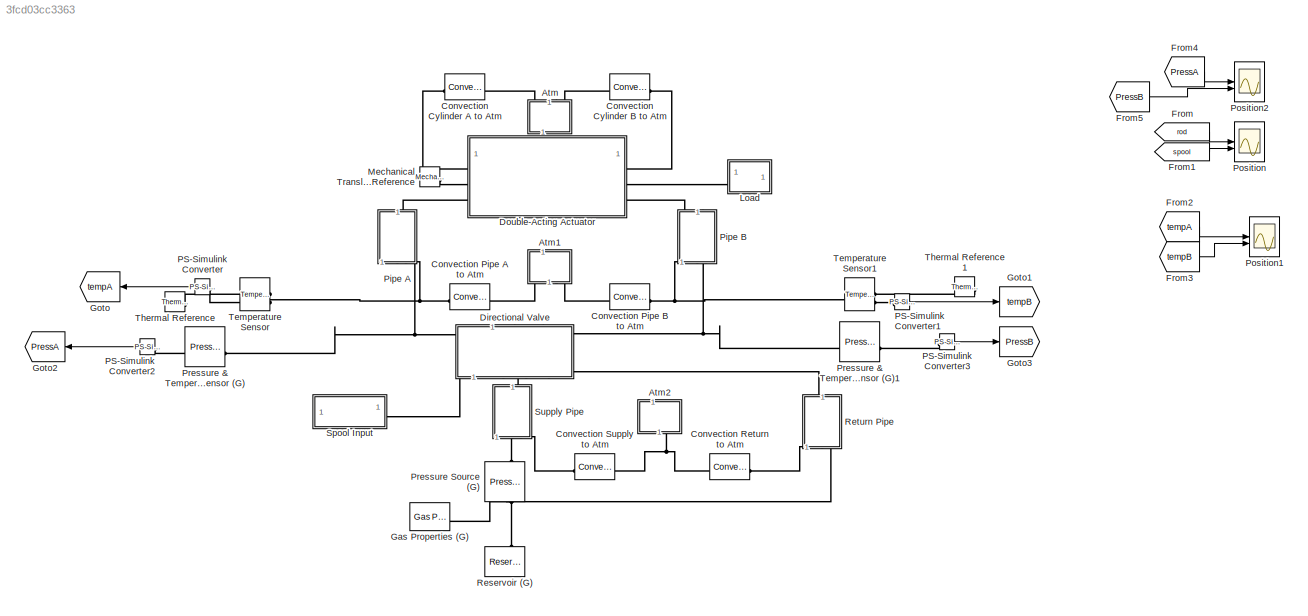
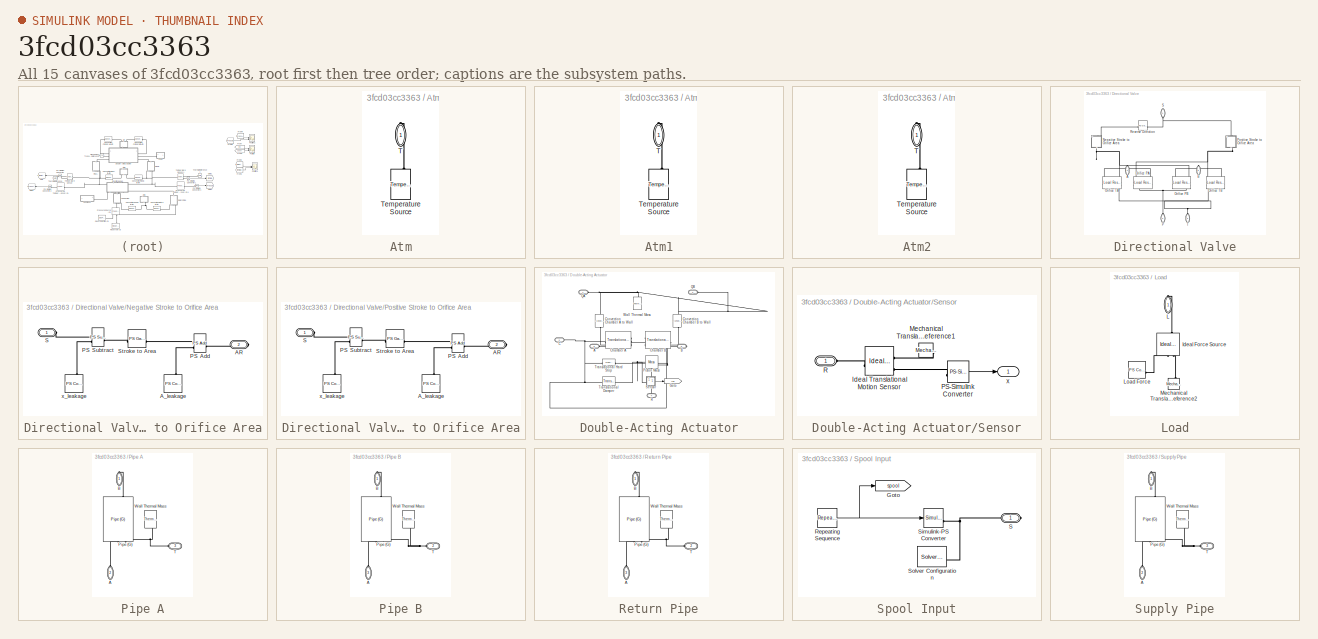
[diagram: thumbnail index - all 15 canvases of the model, root first then tree order]
MODEL slx_3fcd03cc3363
KIND model
CONFIG AbsTol = 1e-3
CONFIG EnableMultiTasking = off
CONFIG FixedStep = auto
CONFIG MaxStep = auto
CONFIG MinStep = auto
CONFIG PreLoadFcn = delta_p = 0.6; % MPa\np_init = 0.101325; % MPa\nT_init = 293.15; % K\nT_atm = 293.15; % K\n\nA_valve_max = 4e-6; % m^2\nA_valve_min = 1e-10; % m^2\n\nA_pipe = 5e-6; % m^2\nL_pipe = 1; % m\n\nA_piston = 0.002; % m^2\nL_piston = 0.2; % m
CONFIG RelTol = 1e-3
CONFIG SampleTimeConstraint = Unconstrained
CONFIG SolverName = VariableStepAuto
CONFIG StartTime = 0.0
CONFIG StopTime = 10.0
BLOCK [SubSystem] Atm
  NameLocation = right
BLOCK [PMIOPort] Atm/T
  NameLocation = right
  Side = Right
BLOCK [Reference] Atm/Temperature Source  REF=fl_lib/Thermal/Thermal Sources/Temperature Source
  NameLocation = right
  SourceBlock = fl_lib/Thermal/Thermal Sources/Temperature Source
  SourceType = Temperature Source
BLOCK [SubSystem] Atm1
  NameLocation = right
BLOCK [PMIOPort] Atm1/T
  NameLocation = right
  Side = Right
BLOCK [Reference] Atm1/Temperature Source  REF=fl_lib/Thermal/Thermal Sources/Temperature Source
  NameLocation = right
  SourceBlock = fl_lib/Thermal/Thermal Sources/Temperature Source
  SourceType = Temperature Source
BLOCK [SubSystem] Atm2
  NameLocation = right
BLOCK [PMIOPort] Atm2/T
  NameLocation = right
  Side = Right
BLOCK [Reference] Atm2/Temperature Source  REF=fl_lib/Thermal/Thermal Sources/Temperature Source
  NameLocation = right
  SourceBlock = fl_lib/Thermal/Thermal Sources/Temperature Source
  SourceType = Temperature Source
BLOCK [Reference] Convection Cylinder A to Atm  REF=fl_lib/Thermal/Thermal Elements/Convective Heat
Transfer
  SourceBlock = fl_lib/Thermal/Thermal Elements/Convective Heat\nTransfer
  SourceType = Convective Heat\nTransfer
BLOCK [Reference] Convection Cylinder B to Atm  REF=fl_lib/Thermal/Thermal Elements/Convective Heat
Transfer
  SourceBlock = fl_lib/Thermal/Thermal Elements/Convective Heat\nTransfer
  SourceType = Convective Heat\nTransfer
BLOCK [Reference] Convection Pipe A to Atm  REF=fl_lib/Thermal/Thermal Elements/Convective Heat
Transfer
  NameLocation = top
  SourceBlock = fl_lib/Thermal/Thermal Elements/Convective Heat\nTransfer
  SourceType = Convective Heat\nTransfer
BLOCK [Reference] Convection Pipe B to Atm  REF=fl_lib/Thermal/Thermal Elements/Convective Heat
Transfer
  NameLocation = top
  SourceBlock = fl_lib/Thermal/Thermal Elements/Convective Heat\nTransfer
  SourceType = Convective Heat\nTransfer
BLOCK [Reference] Convection Return to Atm  REF=fl_lib/Thermal/Thermal Elements/Convective Heat
Transfer
  NameLocation = top
  SourceBlock = fl_lib/Thermal/Thermal Elements/Convective Heat\nTransfer
  SourceType = Convective Heat\nTransfer
BLOCK [Reference] Convection Supply to Atm  REF=fl_lib/Thermal/Thermal Elements/Convective Heat
Transfer
  NameLocation = top
  SourceBlock = fl_lib/Thermal/Thermal Elements/Convective Heat\nTransfer
  SourceType = Convective Heat\nTransfer
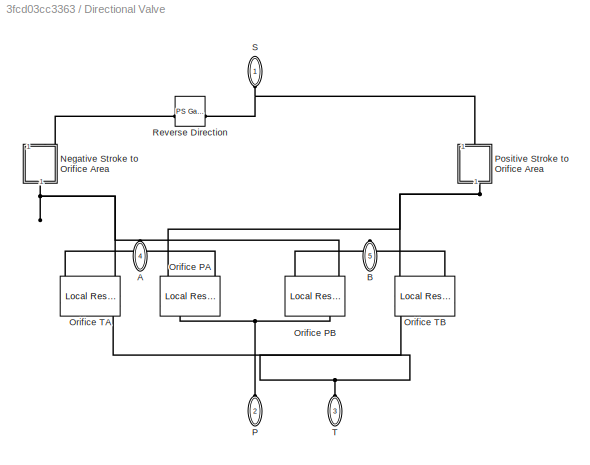
BLOCK [SubSystem] Directional Valve
  NameLocation = right
  Tag = PublishSubsystem
BLOCK [PMIOPort] Directional Valve/A
  NameLocation = right
  Port = 4
  Side = Right
BLOCK [PMIOPort] Directional Valve/B
  NameLocation = right
  Port = 5
  Side = Right
BLOCK [SubSystem] Directional Valve/Negative Stroke to Orifice Area
  NameLocation = right
BLOCK [PMIOPort] Directional Valve/Negative Stroke to Orifice Area/AR
  Port = 2
  Side = Right
BLOCK [Reference] Directional Valve/Negative Stroke to Orifice Area/A_leakage  REF=fl_lib/Physical Signals/Sources/PS Constant
  NameLocation = right
  SourceBlock = fl_lib/Physical Signals/Sources/PS Constant
  SourceType = PS Constant
BLOCK [Reference] Directional Valve/Negative Stroke to Orifice Area/PS Add  REF=fl_lib/Physical Signals/Functions/PS Add
  SourceBlock = fl_lib/Physical Signals/Functions/PS Add
  SourceType = PS Add
BLOCK [Reference] Directional Valve/Negative Stroke to Orifice Area/PS Subtract  REF=fl_lib/Physical Signals/Functions/PS Subtract
  SourceBlock = fl_lib/Physical Signals/Functions/PS Subtract
  SourceType = PS Subtract
BLOCK [PMIOPort] Directional Valve/Negative Stroke to Orifice Area/S
  Side = Left
BLOCK [Reference] Directional Valve/Negative Stroke to Orifice Area/Stroke to Area  REF=fl_lib/Physical Signals/Functions/PS Gain
  SourceBlock = fl_lib/Physical Signals/Functions/PS Gain
  SourceType = PS Gain
BLOCK [Reference] Directional Valve/Negative Stroke to Orifice Area/x_leakage  REF=fl_lib/Physical Signals/Sources/PS Constant
  NameLocation = right
  SourceBlock = fl_lib/Physical Signals/Sources/PS Constant
  SourceType = PS Constant
BLOCK [Reference] Directional Valve/Orifice PA  REF=fl_lib/Gas/Elements/Local Restriction
(G)
  SourceBlock = fl_lib/Gas/Elements/Local Restriction\n(G)
  SourceType = Local Restriction\n(G)
BLOCK [Reference] Directional Valve/Orifice PB  REF=fl_lib/Gas/Elements/Local Restriction
(G)
  SourceBlock = fl_lib/Gas/Elements/Local Restriction\n(G)
  SourceType = Local Restriction\n(G)
BLOCK [Reference] Directional Valve/Orifice TA  REF=fl_lib/Gas/Elements/Local Restriction
(G)
  SourceBlock = fl_lib/Gas/Elements/Local Restriction\n(G)
  SourceType = Local Restriction\n(G)
BLOCK [Reference] Directional Valve/Orifice TB  REF=fl_lib/Gas/Elements/Local Restriction
(G)
  SourceBlock = fl_lib/Gas/Elements/Local Restriction\n(G)
  SourceType = Local Restriction\n(G)
BLOCK [PMIOPort] Directional Valve/P
  NameLocation = right
  Port = 2
  Side = Left
BLOCK [SubSystem] Directional Valve/Positive Stroke to Orifice Area
  NameLocation = left
BLOCK [PMIOPort] Directional Valve/Positive Stroke to Orifice Area/AR
  Port = 2
  Side = Right
BLOCK [Reference] Directional Valve/Positive Stroke to Orifice Area/A_leakage  REF=fl_lib/Physical Signals/Sources/PS Constant
  NameLocation = right
  SourceBlock = fl_lib/Physical Signals/Sources/PS Constant
  SourceType = PS Constant
BLOCK [Reference] Directional Valve/Positive Stroke to Orifice Area/PS Add  REF=fl_lib/Physical Signals/Functions/PS Add
  SourceBlock = fl_lib/Physical Signals/Functions/PS Add
  SourceType = PS Add
BLOCK [Reference] Directional Valve/Positive Stroke to Orifice Area/PS Subtract  REF=fl_lib/Physical Signals/Functions/PS Subtract
  SourceBlock = fl_lib/Physical Signals/Functions/PS Subtract
  SourceType = PS Subtract
BLOCK [PMIOPort] Directional Valve/Positive Stroke to Orifice Area/S
  Side = Left
BLOCK [Reference] Directional Valve/Positive Stroke to Orifice Area/Stroke to Area  REF=fl_lib/Physical Signals/Functions/PS Gain
  SourceBlock = fl_lib/Physical Signals/Functions/PS Gain
  SourceType = PS Gain
BLOCK [Reference] Directional Valve/Positive Stroke to Orifice Area/x_leakage  REF=fl_lib/Physical Signals/Sources/PS Constant
  NameLocation = right
  SourceBlock = fl_lib/Physical Signals/Sources/PS Constant
  SourceType = PS Constant
BLOCK [Reference] Directional Valve/Reverse Direction  REF=fl_lib/Physical Signals/Functions/PS Gain
  SourceBlock = fl_lib/Physical Signals/Functions/PS Gain
  SourceType = PS Gain
BLOCK [PMIOPort] Directional Valve/S
  NameLocation = right
  Side = Left
BLOCK [PMIOPort] Directional Valve/T
  NameLocation = right
  Port = 3
  Side = Left
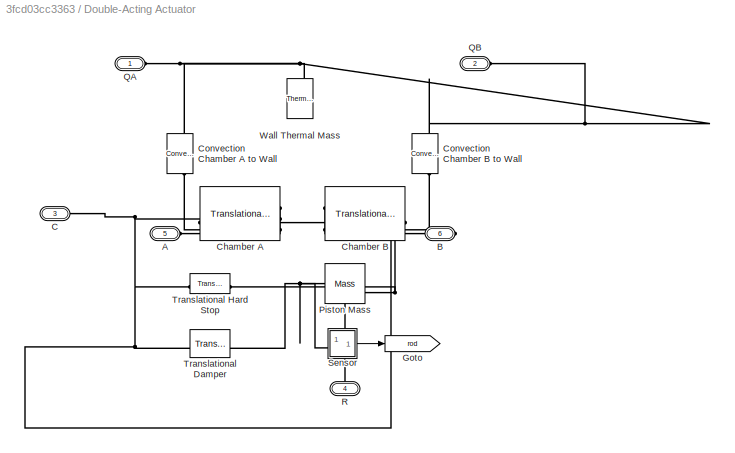
BLOCK [SubSystem] Double-Acting Actuator
  Tag = PublishSubsystem
BLOCK [PMIOPort] Double-Acting Actuator/A
  Port = 5
  Side = Left
BLOCK [PMIOPort] Double-Acting Actuator/B
  Port = 6
  Side = Right
BLOCK [PMIOPort] Double-Acting Actuator/C
  Port = 3
  Side = Left
BLOCK [Reference] Double-Acting Actuator/Chamber A  REF=fl_lib/Gas/Elements/Translational
Mechanical Converter
(G)
  SourceBlock = fl_lib/Gas/Elements/Translational\nMechanical Converter\n(G)
  SourceType = Translational\nMechanical Converter\n(G)
BLOCK [Reference] Double-Acting Actuator/Chamber B  REF=fl_lib/Gas/Elements/Translational
Mechanical Converter
(G)
  SourceBlock = fl_lib/Gas/Elements/Translational\nMechanical Converter\n(G)
  SourceType = Translational\nMechanical Converter\n(G)
BLOCK [Reference] Double-Acting Actuator/Convection Chamber A to Wall  REF=fl_lib/Thermal/Thermal Elements/Convective Heat
Transfer
  NameLocation = right
  SourceBlock = fl_lib/Thermal/Thermal Elements/Convective Heat\nTransfer
  SourceType = Convective Heat\nTransfer
BLOCK [Reference] Double-Acting Actuator/Convection Chamber B to Wall  REF=fl_lib/Thermal/Thermal Elements/Convective Heat
Transfer
  NameLocation = left
  SourceBlock = fl_lib/Thermal/Thermal Elements/Convective Heat\nTransfer
  SourceType = Convective Heat\nTransfer
BLOCK [Goto] Double-Acting Actuator/Goto
  GotoTag = rod
  TagVisibility = global
BLOCK [Reference] Double-Acting Actuator/Piston Mass  REF=fl_lib/Mechanical/Translational
Elements/Mass
  SourceBlock = fl_lib/Mechanical/Translational\nElements/Mass
  SourceType = Mass
BLOCK [PMIOPort] Double-Acting Actuator/QA
  Side = Left
BLOCK [PMIOPort] Double-Acting Actuator/QB
  Port = 2
  Side = Right
BLOCK [PMIOPort] Double-Acting Actuator/R
  Port = 4
  Side = Right
BLOCK [SubSystem] Double-Acting Actuator/Sensor
BLOCK [Reference] Double-Acting Actuator/Sensor/Ideal Translational Motion Sensor  REF=fl_lib/Mechanical/Mechanical Sensors/Ideal Translational
Motion Sensor
  SourceBlock = fl_lib/Mechanical/Mechanical Sensors/Ideal Translational\nMotion Sensor
  SourceType = Ideal Translational\nMotion Sensor
BLOCK [Reference] Double-Acting Actuator/Sensor/Mechanical Translational Reference1  REF=fl_lib/Mechanical/Translational
Elements/Mechanical
Translational
Reference
  NameLocation = top
  SourceBlock = fl_lib/Mechanical/Translational\nElements/Mechanical\nTranslational\nReference
  SourceType = Mechanical\nTranslational\nReference
BLOCK [Reference] Double-Acting Actuator/Sensor/PS-Simulink Converter  REF=nesl_utility/PS-Simulink
Converter
  SourceBlock = nesl_utility/PS-Simulink\nConverter
  SourceType = PS-Simulink\nConverter
BLOCK [PMIOPort] Double-Acting Actuator/Sensor/R
  Side = Left
BLOCK [Outport] Double-Acting Actuator/Sensor/x
  VectorParamsAs1DForOutWhenUnconnected = off
BLOCK [Reference] Double-Acting Actuator/Translational Damper  REF=fl_lib/Mechanical/Translational
Elements/Translational Damper
  SourceBlock = fl_lib/Mechanical/Translational\nElements/Translational Damper
  SourceType = Translational Damper
BLOCK [Reference] Double-Acting Actuator/Translational Hard Stop  REF=fl_lib/Mechanical/Translational
Elements/Translational Hard
Stop
  SourceBlock = fl_lib/Mechanical/Translational\nElements/Translational Hard\nStop
  SourceType = Translational Hard\nStop
BLOCK [Reference] Double-Acting Actuator/Wall Thermal Mass  REF=fl_lib/Thermal/Thermal Elements/Thermal Mass
  NameLocation = right
  SourceBlock = fl_lib/Thermal/Thermal Elements/Thermal Mass
  SourceType = Thermal Mass
BLOCK [From] From
  GotoTag = rod
  TagVisibility = global
BLOCK [From] From1
  GotoTag = spool
  TagVisibility = global
BLOCK [From] From2
  GotoTag = tempA
  NameLocation = top
BLOCK [From] From3
  GotoTag = tempB
  NameLocation = top
BLOCK [From] From4
  GotoTag = PressA
  NameLocation = top
BLOCK [From] From5
  GotoTag = PressB
  NameLocation = top
BLOCK [Reference] Gas Properties (G)  REF=fl_lib/Gas/Utilities/Gas Properties (G)
  SourceBlock = fl_lib/Gas/Utilities/Gas Properties (G)
  SourceType = Gas Properties (G)
BLOCK [Goto] Goto
  GotoTag = tempA
  NameLocation = top
BLOCK [Goto] Goto1
  GotoTag = tempB
BLOCK [Goto] Goto2
  GotoTag = PressA
  NameLocation = top
BLOCK [Goto] Goto3
  GotoTag = PressB
BLOCK [SubSystem] Load
  NameLocation = top
BLOCK [Reference] Load/Ideal Force Source  REF=fl_lib/Mechanical/Mechanical Sources/Ideal Force Source
  NameLocation = right
  SourceBlock = fl_lib/Mechanical/Mechanical Sources/Ideal Force Source
  SourceType = Ideal Force Source
BLOCK [PMIOPort] Load/L
  NameLocation = right
  Side = Right
BLOCK [Reference] Load/Load Force  REF=fl_lib/Physical Signals/Sources/PS Constant
  SourceBlock = fl_lib/Physical Signals/Sources/PS Constant
  SourceType = PS Constant
BLOCK [Reference] Load/Mechanical Translational Reference2  REF=fl_lib/Mechanical/Translational
Elements/Mechanical
Translational
Reference
  NameLocation = right
  SourceBlock = fl_lib/Mechanical/Translational\nElements/Mechanical\nTranslational\nReference
  SourceType = Mechanical\nTranslational\nReference
BLOCK [Reference] Mechanical Translational Reference  REF=fl_lib/Mechanical/Translational
Elements/Mechanical
Translational
Reference
  SourceBlock = fl_lib/Mechanical/Translational\nElements/Mechanical\nTranslational\nReference
  SourceType = Mechanical\nTranslational\nReference
BLOCK [Reference] PS-Simulink Converter  REF=nesl_utility/PS-Simulink
Converter
  NameLocation = top
  SourceBlock = nesl_utility/PS-Simulink\nConverter
  SourceType = PS-Simulink\nConverter
BLOCK [Reference] PS-Simulink Converter1  REF=nesl_utility/PS-Simulink
Converter
  SourceBlock = nesl_utility/PS-Simulink\nConverter
  SourceType = PS-Simulink\nConverter
BLOCK [Reference] PS-Simulink Converter2  REF=nesl_utility/PS-Simulink
Converter
  NameLocation = top
  SourceBlock = nesl_utility/PS-Simulink\nConverter
  SourceType = PS-Simulink\nConverter
BLOCK [Reference] PS-Simulink Converter3  REF=nesl_utility/PS-Simulink
Converter
  SourceBlock = nesl_utility/PS-Simulink\nConverter
  SourceType = PS-Simulink\nConverter
BLOCK [SubSystem] Pipe A
  NameLocation = right
BLOCK [PMIOPort] Pipe A/A
  NameLocation = right
  Port = 2
  Side = Left
BLOCK [PMIOPort] Pipe A/B
  NameLocation = right
  Side = Right
BLOCK [Reference] Pipe A/Pipe (G)  REF=fl_lib/Gas/Elements/Pipe (G)
  NameLocation = left
  SourceBlock = fl_lib/Gas/Elements/Pipe (G)
  SourceType = Pipe (G)
BLOCK [PMIOPort] Pipe A/T
  Port = 3
  Side = Left
BLOCK [Reference] Pipe A/Wall Thermal Mass  REF=fl_lib/Thermal/Thermal Elements/Thermal Mass
  NameLocation = right
  SourceBlock = fl_lib/Thermal/Thermal Elements/Thermal Mass
  SourceType = Thermal Mass
BLOCK [SubSystem] Pipe B
  NameLocation = left
BLOCK [PMIOPort] Pipe B/A
  NameLocation = right
  Port = 3
  Side = Left
BLOCK [PMIOPort] Pipe B/B
  NameLocation = right
  Side = Right
BLOCK [Reference] Pipe B/Pipe (G)  REF=fl_lib/Gas/Elements/Pipe (G)
  NameLocation = left
  SourceBlock = fl_lib/Gas/Elements/Pipe (G)
  SourceType = Pipe (G)
BLOCK [PMIOPort] Pipe B/T
  Port = 2
  Side = Left
BLOCK [Reference] Pipe B/Wall Thermal Mass  REF=fl_lib/Thermal/Thermal Elements/Thermal Mass
  NameLocation = right
  SourceBlock = fl_lib/Thermal/Thermal Elements/Thermal Mass
  SourceType = Thermal Mass
BLOCK [Scope] Position
  Floating = off
  NumInputPorts = 2
  ScopeSpecificationString = Simulink.scopes.TimeScopeBlockCfg('CurrentConfiguration', extmgr.ConfigurationSet(extmgr.Configuration('Core','General UI',true),extmgr.Configuration('Core','Source UI',true),extmgr.Configuration('Sources','WiredSimulink',true,'DataLoggingSaveFormat','Array'),extmgr.Configuration('Visuals','Time Domain',true,'SerializedDisplays',{struct('MinYLimReal','-0.0252','MaxYLimReal','0.2251','YLabelReal','...<+1988ch>
  Tag = PublishScope
BLOCK [Scope] Position1
  Floating = off
  NumInputPorts = 2
  ScopeSpecificationString = Simulink.scopes.TimeScopeBlockCfg('CurrentConfiguration', extmgr.ConfigurationSet(extmgr.Configuration('Core','General UI',true),extmgr.Configuration('Core','Source UI',true),extmgr.Configuration('Sources','WiredSimulink',true,'DataLoggingSaveFormat','Array','DataLoggingVariableName','ScopeData1'),extmgr.Configuration('Visuals','Time Domain',true,'SerializedDisplays',{struct('MinYLimReal','291.196...<+2125ch>
  Tag = PublishScope
BLOCK [Scope] Position2
  Floating = off
  NumInputPorts = 2
  ScopeSpecificationString = Simulink.scopes.TimeScopeBlockCfg('CurrentConfiguration', extmgr.ConfigurationSet(extmgr.Configuration('Core','General UI',true),extmgr.Configuration('Core','Source UI',true),extmgr.Configuration('Sources','WiredSimulink',true,'DataLoggingSaveFormat','Array','DataLoggingVariableName','ScopeData2'),extmgr.Configuration('Visuals','Time Domain',true,'SerializedDisplays',{struct('MinYLimReal','26498.2...<+2143ch>
  Tag = PublishScope
BLOCK [Reference] Pressure & Temperature Sensor (G)  REF=fl_lib/Gas/Sensors/Pressure &
Temperature Sensor
(G)
  NameLocation = top
  SourceBlock = fl_lib/Gas/Sensors/Pressure &\nTemperature Sensor\n(G)
  SourceType = Pressure &\nTemperature Sensor\n(G)
BLOCK [Reference] Pressure & Temperature Sensor (G)1  REF=fl_lib/Gas/Sensors/Pressure &
Temperature Sensor
(G)
  SourceBlock = fl_lib/Gas/Sensors/Pressure &\nTemperature Sensor\n(G)
  SourceType = Pressure &\nTemperature Sensor\n(G)
BLOCK [Reference] Pressure Source (G)  REF=fl_lib/Gas/Sources/Pressure Source (G)
  NameLocation = left
  SourceBlock = fl_lib/Gas/Sources/Pressure Source (G)
  SourceType = Pressure Source (G)
BLOCK [Reference] Reservoir (G)  REF=fl_lib/Gas/Elements/Reservoir (G)
  NameLocation = left
  SourceBlock = fl_lib/Gas/Elements/Reservoir (G)
  SourceType = Reservoir (G)
BLOCK [SubSystem] Return Pipe
  NameLocation = left
BLOCK [PMIOPort] Return Pipe/A
  NameLocation = right
  Port = 3
  Side = Left
BLOCK [PMIOPort] Return Pipe/B
  NameLocation = right
  Side = Right
BLOCK [Reference] Return Pipe/Pipe (G)  REF=fl_lib/Gas/Elements/Pipe (G)
  NameLocation = left
  SourceBlock = fl_lib/Gas/Elements/Pipe (G)
  SourceType = Pipe (G)
BLOCK [PMIOPort] Return Pipe/T
  Port = 2
  Side = Left
BLOCK [Reference] Return Pipe/Wall Thermal Mass  REF=fl_lib/Thermal/Thermal Elements/Thermal Mass
  NameLocation = right
  SourceBlock = fl_lib/Thermal/Thermal Elements/Thermal Mass
  SourceType = Thermal Mass
BLOCK [SubSystem] Spool Input
BLOCK [Goto] Spool Input/Goto
  GotoTag = spool
  TagVisibility = global
BLOCK [Reference] Spool Input/Repeating Sequence  REF=simulink/Sources/Repeating
Sequence
  SourceBlock = simulink/Sources/Repeating\nSequence
  SourceType = Repeating table
BLOCK [PMIOPort] Spool Input/S
  Side = Right
BLOCK [Reference] Spool Input/Simulink-PS Converter  REF=nesl_utility/Simulink-PS
Converter
  SourceBlock = nesl_utility/Simulink-PS\nConverter
  SourceType = Simulink-PS\nConverter
BLOCK [Reference] Spool Input/Solver Configuration  REF=nesl_utility/Solver
Configuration
  SourceBlock = nesl_utility/Solver\nConfiguration
  SourceType = Solver\nConfiguration
BLOCK [SubSystem] Supply Pipe
  NameLocation = right
  Tag = PublishSubsystem
BLOCK [PMIOPort] Supply Pipe/A
  NameLocation = right
  Port = 2
  Side = Left
BLOCK [PMIOPort] Supply Pipe/B
  NameLocation = right
  Side = Right
BLOCK [Reference] Supply Pipe/Pipe (G)  REF=fl_lib/Gas/Elements/Pipe (G)
  NameLocation = left
  SourceBlock = fl_lib/Gas/Elements/Pipe (G)
  SourceType = Pipe (G)
BLOCK [PMIOPort] Supply Pipe/T
  Port = 3
  Side = Left
BLOCK [Reference] Supply Pipe/Wall Thermal Mass  REF=fl_lib/Thermal/Thermal Elements/Thermal Mass
  NameLocation = right
  SourceBlock = fl_lib/Thermal/Thermal Elements/Thermal Mass
  SourceType = Thermal Mass
BLOCK [Reference] Temperature Sensor  REF=fl_lib/Thermal/Thermal Sensors/Temperature Sensor
  NameLocation = top
  SourceBlock = fl_lib/Thermal/Thermal Sensors/Temperature Sensor
  SourceType = Temperature Sensor
BLOCK [Reference] Temperature Sensor1  REF=fl_lib/Thermal/Thermal Sensors/Temperature Sensor
  SourceBlock = fl_lib/Thermal/Thermal Sensors/Temperature Sensor
  SourceType = Temperature Sensor
BLOCK [Reference] Thermal Reference  REF=fl_lib/Thermal/Thermal Elements/Thermal Reference
  SourceBlock = fl_lib/Thermal/Thermal Elements/Thermal Reference
  SourceType = Thermal Reference
BLOCK [Reference] Thermal Reference1  REF=fl_lib/Thermal/Thermal Elements/Thermal Reference
  NameLocation = top
  SourceBlock = fl_lib/Thermal/Thermal Elements/Thermal Reference
  SourceType = Thermal Reference
LINE Double-Acting Actuator/Sensor/PS-Simulink Converter:1 -> Double-Acting Actuator/Sensor/x:1
LINE Double-Acting Actuator/Sensor:1 -> Double-Acting Actuator/Goto:1
LINE From1:1 -> Position:2
LINE From2:1 -> Position1:1
LINE From3:1 -> Position1:2
LINE From4:1 -> Position2:1
LINE From5:1 -> Position2:2
LINE From:1 -> Position:1
LINE PS-Simulink Converter1:1 -> Goto1:1
LINE PS-Simulink Converter2:1 -> Goto2:1
LINE PS-Simulink Converter3:1 -> Goto3:1
LINE PS-Simulink Converter:1 -> Goto:1
NET Spool Input/Repeating Sequence:1 -> Spool Input/Goto:1, Spool Input/Simulink-PS Converter:1
PLINE Atm/T:RConn1 -- Atm/Temperature Source:LConn1
PLINE Atm1/T:RConn1 -- Atm1/Temperature Source:LConn1
PNET net1: Atm1:RConn1 -- Convection Pipe A to Atm:RConn1 -- Convection Pipe B to Atm:RConn1
PLINE Atm2/T:RConn1 -- Atm2/Temperature Source:LConn1
PNET net2: Atm2:RConn1 -- Convection Return to Atm:RConn1 -- Convection Supply to Atm:RConn1
PNET net3: Atm:RConn1 -- Convection Cylinder A to Atm:RConn1 -- Convection Cylinder B to Atm:RConn1
PLINE Convection Cylinder A to Atm:LConn1 -- Double-Acting Actuator:LConn1
PLINE Convection Cylinder B to Atm:LConn1 -- Double-Acting Actuator:RConn1
PNET net4: Convection Pipe A to Atm:LConn1 -- Pipe A:LConn2 -- Temperature Sensor:LConn1
PNET net5: Convection Pipe B to Atm:LConn1 -- Pipe B:LConn1 -- Temperature Sensor1:LConn1
PLINE Convection Return to Atm:LConn1 -- Return Pipe:LConn1
PLINE Convection Supply to Atm:LConn1 -- Supply Pipe:LConn2
PNET net6: Directional Valve/A:RConn1 -- Directional Valve/Orifice PA:RConn1 -- Directional Valve/Orifice TA:RConn1
PNET net7: Directional Valve/B:RConn1 -- Directional Valve/Orifice PB:RConn1 -- Directional Valve/Orifice TB:RConn1
PLINE Directional Valve/Negative Stroke to Orifice Area/AR:RConn1 -- Directional Valve/Negative Stroke to Orifice Area/PS Add:RConn1
PLINE Directional Valve/Negative Stroke to Orifice Area/A_leakage:RConn1 -- Directional Valve/Negative Stroke to Orifice Area/PS Add:LConn2
PLINE Directional Valve/Negative Stroke to Orifice Area/PS Add:LConn1 -- Directional Valve/Negative Stroke to Orifice Area/Stroke to Area:RConn1
PLINE Directional Valve/Negative Stroke to Orifice Area/PS Subtract:LConn1 -- Directional Valve/Negative Stroke to Orifice Area/S:RConn1
PLINE Directional Valve/Negative Stroke to Orifice Area/PS Subtract:LConn2 -- Directional Valve/Negative Stroke to Orifice Area/x_leakage:RConn1
PLINE Directional Valve/Negative Stroke to Orifice Area/PS Subtract:RConn1 -- Directional Valve/Negative Stroke to Orifice Area/Stroke to Area:LConn1
PLINE Directional Valve/Negative Stroke to Orifice Area:LConn1 -- Directional Valve/Reverse Direction:RConn1
PNET net8: Directional Valve/Negative Stroke to Orifice Area:RConn1 -- Directional Valve/Orifice PB:LConn2 -- Directional Valve/Orifice TA:LConn2
PNET net9: Directional Valve/Orifice PA:LConn1 -- Directional Valve/Orifice PB:LConn1 -- Directional Valve/P:RConn1
PNET net10: Directional Valve/Orifice PA:LConn2 -- Directional Valve/Orifice TB:LConn2 -- Directional Valve/Positive Stroke to Orifice Area:RConn1
PNET net11: Directional Valve/Orifice TA:LConn1 -- Directional Valve/Orifice TB:LConn1 -- Directional Valve/T:RConn1
PLINE Directional Valve/Positive Stroke to Orifice Area/AR:RConn1 -- Directional Valve/Positive Stroke to Orifice Area/PS Add:RConn1
PLINE Directional Valve/Positive Stroke to Orifice Area/A_leakage:RConn1 -- Directional Valve/Positive Stroke to Orifice Area/PS Add:LConn2
PLINE Directional Valve/Positive Stroke to Orifice Area/PS Add:LConn1 -- Directional Valve/Positive Stroke to Orifice Area/Stroke to Area:RConn1
PLINE Directional Valve/Positive Stroke to Orifice Area/PS Subtract:LConn1 -- Directional Valve/Positive Stroke to Orifice Area/S:RConn1
PLINE Directional Valve/Positive Stroke to Orifice Area/PS Subtract:LConn2 -- Directional Valve/Positive Stroke to Orifice Area/x_leakage:RConn1
PLINE Directional Valve/Positive Stroke to Orifice Area/PS Subtract:RConn1 -- Directional Valve/Positive Stroke to Orifice Area/Stroke to Area:LConn1
PNET net12: Directional Valve/Positive Stroke to Orifice Area:LConn1 -- Directional Valve/Reverse Direction:LConn1 -- Directional Valve/S:RConn1
PLINE Directional Valve:LConn1 -- Spool Input:RConn1
PLINE Directional Valve:LConn2 -- Supply Pipe:RConn1
PLINE Directional Valve:LConn3 -- Return Pipe:RConn1
PNET net13: Directional Valve:RConn1 -- Pipe A:LConn1 -- Pressure & Temperature Sensor (G):LConn1
PNET net14: Directional Valve:RConn2 -- Pipe B:LConn2 -- Pressure & Temperature Sensor (G)1:LConn1
PLINE Double-Acting Actuator/A:RConn1 -- Double-Acting Actuator/Chamber A:LConn1
PLINE Double-Acting Actuator/B:RConn1 -- Double-Acting Actuator/Chamber B:LConn1
PNET net15: Double-Acting Actuator/C:RConn1 -- Double-Acting Actuator/Chamber A:LConn2 -- Double-Acting Actuator/Chamber B:LConn2 -- Double-Acting Actuator/Translational Damper:RConn1 -- Double-Acting Actuator/Translational Hard Stop:RConn1
PLINE Double-Acting Actuator/Chamber A:LConn3 -- Double-Acting Actuator/Convection Chamber A to Wall:LConn1
PNET net16: Double-Acting Actuator/Chamber A:RConn1 -- Double-Acting Actuator/Chamber B:RConn1 -- Double-Acting Actuator/Piston Mass:LConn1 -- Double-Acting Actuator/R:RConn1 -- Double-Acting Actuator/Sensor:LConn1 -- Double-Acting Actuator/Translational Damper:LConn1 -- Double-Acting Actuator/Translational Hard Stop:LConn1
PLINE Double-Acting Actuator/Chamber B:LConn3 -- Double-Acting Actuator/Convection Chamber B to Wall:LConn1
PNET net17: Double-Acting Actuator/Convection Chamber A to Wall:RConn1 -- Double-Acting Actuator/Convection Chamber B to Wall:RConn1 -- Double-Acting Actuator/QA:RConn1 -- Double-Acting Actuator/QB:RConn1 -- Double-Acting Actuator/Wall Thermal Mass:LConn1
PLINE Double-Acting Actuator/Sensor/Ideal Translational Motion Sensor:LConn1 -- Double-Acting Actuator/Sensor/R:RConn1
PLINE Double-Acting Actuator/Sensor/Ideal Translational Motion Sensor:RConn1 -- Double-Acting Actuator/Sensor/Mechanical Translational Reference1:LConn1
PLINE Double-Acting Actuator/Sensor/Ideal Translational Motion Sensor:RConn3 -- Double-Acting Actuator/Sensor/PS-Simulink Converter:LConn1
PLINE Double-Acting Actuator:LConn2 -- Mechanical Translational Reference:LConn1
PLINE Double-Acting Actuator:LConn3 -- Pipe A:RConn1
PLINE Double-Acting Actuator:RConn2 -- Load:RConn1
PLINE Double-Acting Actuator:RConn3 -- Pipe B:RConn1
PNET net18: Gas Properties (G):RConn1 -- Pressure Source (G):LConn1 -- Reservoir (G):LConn1 -- Return Pipe:LConn2
PLINE Load/Ideal Force Source:LConn1 -- Load/L:RConn1
PLINE Load/Ideal Force Source:RConn1 -- Load/Load Force:RConn1
PLINE Load/Ideal Force Source:RConn2 -- Load/Mechanical Translational Reference2:LConn1
PLINE PS-Simulink Converter1:LConn1 -- Temperature Sensor1:RConn2
PLINE PS-Simulink Converter2:LConn1 -- Pressure & Temperature Sensor (G):RConn1
PLINE PS-Simulink Converter3:LConn1 -- Pressure & Temperature Sensor (G)1:RConn1
PLINE PS-Simulink Converter:LConn1 -- Temperature Sensor:RConn2
PLINE Pipe A/A:RConn1 -- Pipe A/Pipe (G):LConn1
PLINE Pipe A/B:RConn1 -- Pipe A/Pipe (G):RConn1
PNET net19: Pipe A/Pipe (G):LConn2 -- Pipe A/T:RConn1 -- Pipe A/Wall Thermal Mass:LConn1
PLINE Pipe B/A:RConn1 -- Pipe B/Pipe (G):LConn1
PLINE Pipe B/B:RConn1 -- Pipe B/Pipe (G):RConn1
PNET net20: Pipe B/Pipe (G):LConn2 -- Pipe B/T:RConn1 -- Pipe B/Wall Thermal Mass:LConn1
PLINE Pressure Source (G):RConn1 -- Supply Pipe:LConn1
PLINE Return Pipe/A:RConn1 -- Return Pipe/Pipe (G):LConn1
PLINE Return Pipe/B:RConn1 -- Return Pipe/Pipe (G):RConn1
PNET net21: Return Pipe/Pipe (G):LConn2 -- Return Pipe/T:RConn1 -- Return Pipe/Wall Thermal Mass:LConn1
PNET net22: Spool Input/S:RConn1 -- Spool Input/Simulink-PS Converter:RConn1 -- Spool Input/Solver Configuration:RConn1
PLINE Supply Pipe/A:RConn1 -- Supply Pipe/Pipe (G):LConn1
PLINE Supply Pipe/B:RConn1 -- Supply Pipe/Pipe (G):RConn1
PNET net23: Supply Pipe/Pipe (G):LConn2 -- Supply Pipe/T:RConn1 -- Supply Pipe/Wall Thermal Mass:LConn1
PLINE Temperature Sensor1:RConn1 -- Thermal Reference1:LConn1
PLINE Temperature Sensor:RConn1 -- Thermal Reference:LConn1
note: NET lines group one-source signal fan-out (src -> all destinations, sorted); 1:1 wires keep LINE; PNET lines group multi-terminal physical nets as a canonical sorted terminal list (undirected conserving connections); 2-terminal nets keep the pairwise PLINE form
